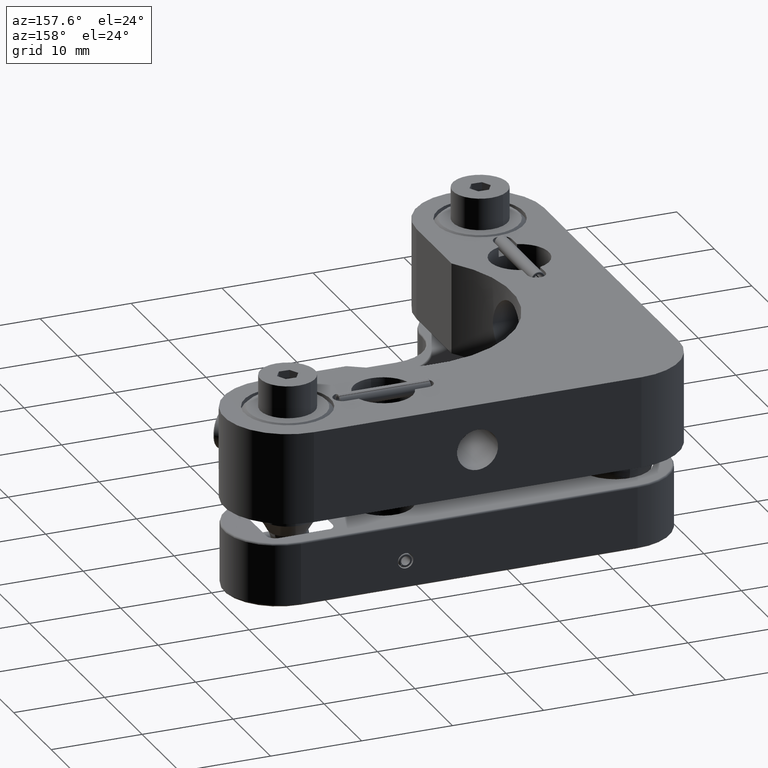
[diagram: clean part render]
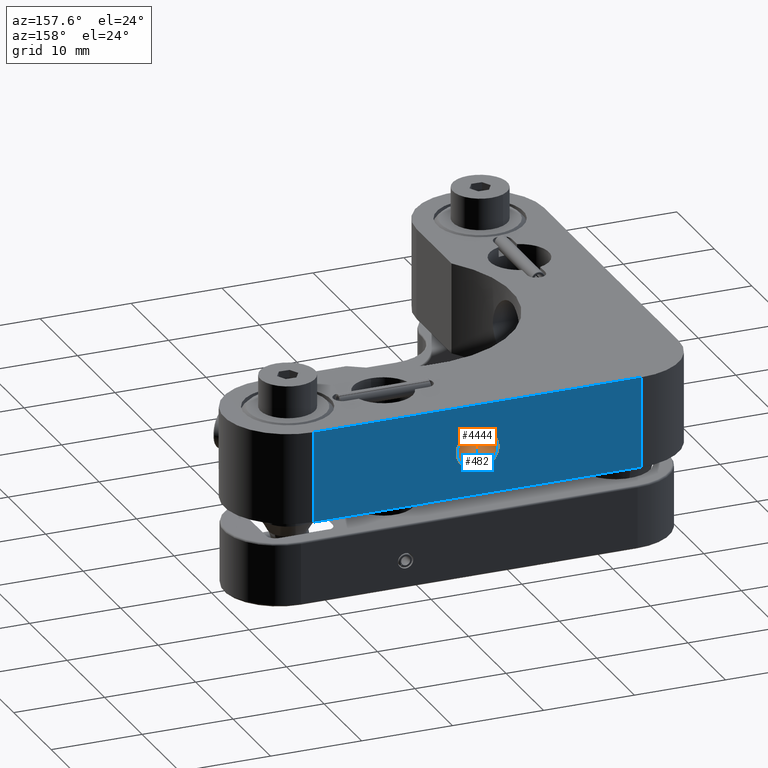
[diagram: same view with the hole feature highlighted: cylindrical wall and planar end face, labeled with their STEP entity ids]
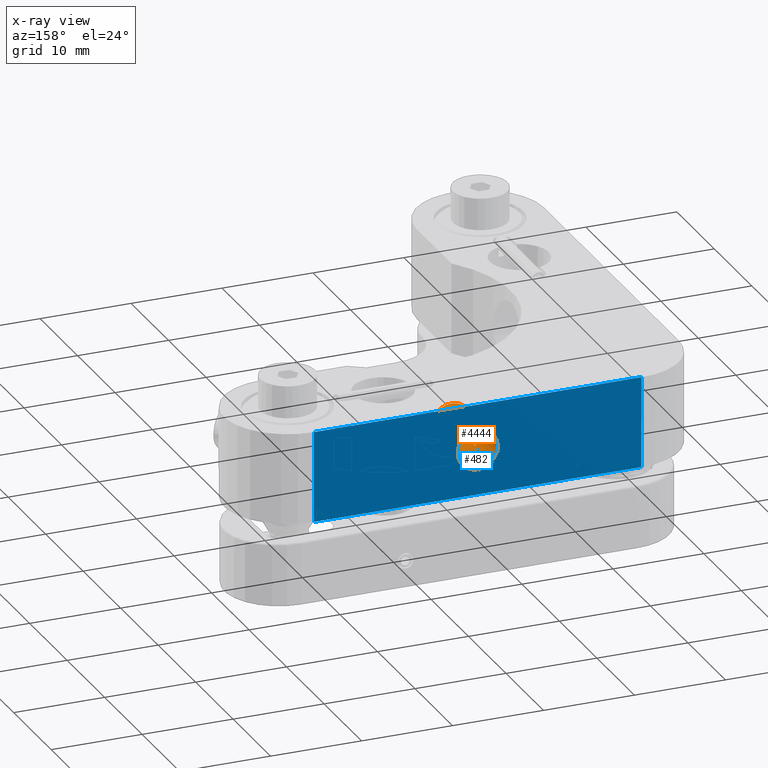
[diagram: x-ray of the same camera — body ghosted, the hole faces saturated]
A machine part, auxiliary view. The highlighted faces form one hole feature of diameter 4.5 mm: the cylindrical wall (entity #4444, orange) and its adjacent planar end face (entity #482, blue) — they share a circular edge in the B-rep.
The next image is the same camera in x-ray (body ghosted, the hole faces saturated) — the bore reads through the body.
Wall:
#45 = CARTESIAN_POINT ( 'NONE',  ( 24.73245038746336988, 52.65705741463437306, 36.48193547686144456 ) ) ;
#95 = CIRCLE ( 'NONE', #3644, 2.249999999999988010 ) ;
#327 = CIRCLE ( 'NONE', #1889, 2.249999999999988010 ) ;
#755 = CARTESIAN_POINT ( 'NONE',  ( 24.73245038746336988, 52.65705741463437306, 38.73193547686143745 ) ) ;
#969 = EDGE_LOOP ( 'NONE', ( #4221 ) ) ;
#1011 = CARTESIAN_POINT ( 'NONE',  ( 24.73245038746336988, 59.65705741463437306, 38.73193547686143745 ) ) ;
#1078 = CYLINDRICAL_SURFACE ( 'NONE', #1545, 2.249999999999988010 ) ;
#1280 = EDGE_CURVE ( 'NONE', #4465, #4465, #95, .T. ) ;
#1545 = AXIS2_PLACEMENT_3D ( 'NONE', #4346, #2296, #3533 ) ;
#1622 = DIRECTION ( 'NONE',  ( -8.673617379884035472E-19, -1.000000000000000000, 0.000000000000000000 ) ) ;
#1889 = AXIS2_PLACEMENT_3D ( 'NONE', #2807, #1622, #1951 ) ;
#1951 = DIRECTION ( 'NONE',  ( 0.000000000000000000, 0.000000000000000000, 1.000000000000000000 ) ) ;
#2296 = DIRECTION ( 'NONE',  ( -8.673617379884035472E-19, -1.000000000000000000, 0.000000000000000000 ) ) ;
#2694 = FACE_OUTER_BOUND ( 'NONE', #5105, .T. ) ;
#2807 = CARTESIAN_POINT ( 'NONE',  ( 24.73245038746336988, 59.65705741463437306, 36.48193547686144456 ) ) ;
#3509 = ORIENTED_EDGE ( 'NONE', *, *, #1280, .T. ) ;
#3533 = DIRECTION ( 'NONE',  ( 0.000000000000000000, 0.000000000000000000, 1.000000000000000000 ) ) ;
#3644 = AXIS2_PLACEMENT_3D ( 'NONE', #45, #4559, #4635 ) ;
#3986 = VERTEX_POINT ( 'NONE', #1011 ) ;
#3995 = FACE_OUTER_BOUND ( 'NONE', #969, .T. ) ;
#4015 = EDGE_CURVE ( 'NONE', #3986, #3986, #327, .T. ) ;
#4221 = ORIENTED_EDGE ( 'NONE', *, *, #4015, .F. ) ;
#4346 = CARTESIAN_POINT ( 'NONE',  ( 24.73245038746336988, 45.65705741463437306, 36.48193547686144456 ) ) ;
#4444 = ADVANCED_FACE ( 'NONE', ( #3995, #2694 ), #1078, .F. ) ;
#4465 = VERTEX_POINT ( 'NONE', #755 ) ;
#4559 = DIRECTION ( 'NONE',  ( -8.673617379884035472E-19, -1.000000000000000000, 0.000000000000000000 ) ) ;
#4635 = DIRECTION ( 'NONE',  ( 0.000000000000000000, 0.000000000000000000, 1.000000000000000000 ) ) ;
#5105 = EDGE_LOOP ( 'NONE', ( #3509 ) ) ;
End face:
#36 = VERTEX_POINT ( 'NONE', #4402 ) ;
#84 = VERTEX_POINT ( 'NONE', #1639 ) ;
#190 = DIRECTION ( 'NONE',  ( 2.322601987280058456E-17, -1.000000000000000000, 0.000000000000000000 ) ) ;
#208 = EDGE_CURVE ( 'NONE', #84, #36, #4816, .T. ) ;
#327 = CIRCLE ( 'NONE', #1889, 2.249999999999988010 ) ;
#482 = ADVANCED_FACE ( 'NONE', ( #4705, #1004 ), #3412, .F. ) ;
#540 = CARTESIAN_POINT ( 'NONE',  ( 6.732450387463373431, 59.65705741463438017, 31.48193547686144811 ) ) ;
#647 = AXIS2_PLACEMENT_3D ( 'NONE', #540, #190, #5062 ) ;
#731 = DIRECTION ( 'NONE',  ( 1.000000000000000000, 2.322601987280058456E-17, -0.000000000000000000 ) ) ;
#812 = VECTOR ( 'NONE', #923, 1000.000000000000000 ) ;
#839 = CARTESIAN_POINT ( 'NONE',  ( 42.73245038746337343, 59.65705741463438017, 31.48193547686144811 ) ) ;
#923 = DIRECTION ( 'NONE',  ( -0.000000000000000000, 0.000000000000000000, 1.000000000000000000 ) ) ;
#978 = CARTESIAN_POINT ( 'NONE',  ( 42.73245038746337343, 59.65705741463438017, 31.48193547686144811 ) ) ;
#1004 = FACE_OUTER_BOUND ( 'NONE', #2564, .T. ) ;
#1011 = CARTESIAN_POINT ( 'NONE',  ( 24.73245038746336988, 59.65705741463437306, 38.73193547686143745 ) ) ;
#1283 = EDGE_CURVE ( 'NONE', #3304, #4274, #1696, .T. ) ;
#1298 = DIRECTION ( 'NONE',  ( 1.000000000000000000, 2.322601987280058456E-17, -0.000000000000000000 ) ) ;
#1574 = CARTESIAN_POINT ( 'NONE',  ( 6.732450387463373431, 59.65705741463438017, 31.48193547686144811 ) ) ;
#1622 = DIRECTION ( 'NONE',  ( -8.673617379884035472E-19, -1.000000000000000000, 0.000000000000000000 ) ) ;
#1639 = CARTESIAN_POINT ( 'NONE',  ( 6.732450387463373431, 59.65705741463438017, 41.48193547686144456 ) ) ;
#1696 = LINE ( 'NONE', #5000, #2000 ) ;
#1752 = ORIENTED_EDGE ( 'NONE', *, *, #4015, .T. ) ;
#1769 = EDGE_LOOP ( 'NONE', ( #1752 ) ) ;
#1889 = AXIS2_PLACEMENT_3D ( 'NONE', #2807, #1622, #1951 ) ;
#1951 = DIRECTION ( 'NONE',  ( 0.000000000000000000, 0.000000000000000000, 1.000000000000000000 ) ) ;
#1953 = CARTESIAN_POINT ( 'NONE',  ( 6.732450387463373431, 59.65705741463438017, 41.48193547686144456 ) ) ;
#2000 = VECTOR ( 'NONE', #1298, 1000.000000000000000 ) ;
#2379 = CARTESIAN_POINT ( 'NONE',  ( 6.732450387463373431, 59.65705741463438017, 31.48193547686144811 ) ) ;
#2393 = DIRECTION ( 'NONE',  ( -0.000000000000000000, 0.000000000000000000, 1.000000000000000000 ) ) ;
#2400 = ORIENTED_EDGE ( 'NONE', *, *, #5332, .T. ) ;
#2428 = ORIENTED_EDGE ( 'NONE', *, *, #2784, .F. ) ;
#2564 = EDGE_LOOP ( 'NONE', ( #4052, #2428, #3351, #2400 ) ) ;
#2784 = EDGE_CURVE ( 'NONE', #4274, #36, #5115, .T. ) ;
#2807 = CARTESIAN_POINT ( 'NONE',  ( 24.73245038746336988, 59.65705741463437306, 36.48193547686144456 ) ) ;
#3219 = LINE ( 'NONE', #1574, #3443 ) ;
#3304 = VERTEX_POINT ( 'NONE', #2379 ) ;
#3351 = ORIENTED_EDGE ( 'NONE', *, *, #1283, .F. ) ;
#3412 = PLANE ( 'NONE',  #647 ) ;
#3443 = VECTOR ( 'NONE', #2393, 1000.000000000000000 ) ;
#3720 = VECTOR ( 'NONE', #731, 1000.000000000000000 ) ;
#3986 = VERTEX_POINT ( 'NONE', #1011 ) ;
#4015 = EDGE_CURVE ( 'NONE', #3986, #3986, #327, .T. ) ;
#4052 = ORIENTED_EDGE ( 'NONE', *, *, #208, .T. ) ;
#4274 = VERTEX_POINT ( 'NONE', #839 ) ;
#4402 = CARTESIAN_POINT ( 'NONE',  ( 42.73245038746337343, 59.65705741463438017, 41.48193547686144456 ) ) ;
#4705 = FACE_BOUND ( 'NONE', #1769, .T. ) ;
#4816 = LINE ( 'NONE', #1953, #3720 ) ;
#5000 = CARTESIAN_POINT ( 'NONE',  ( 6.732450387463373431, 59.65705741463438017, 31.48193547686144811 ) ) ;
#5062 = DIRECTION ( 'NONE',  ( -1.000000000000000000, -2.322601987280058456E-17, 0.000000000000000000 ) ) ;
#5115 = LINE ( 'NONE', #978, #812 ) ;
#5332 = EDGE_CURVE ( 'NONE', #3304, #84, #3219, .T. ) ;